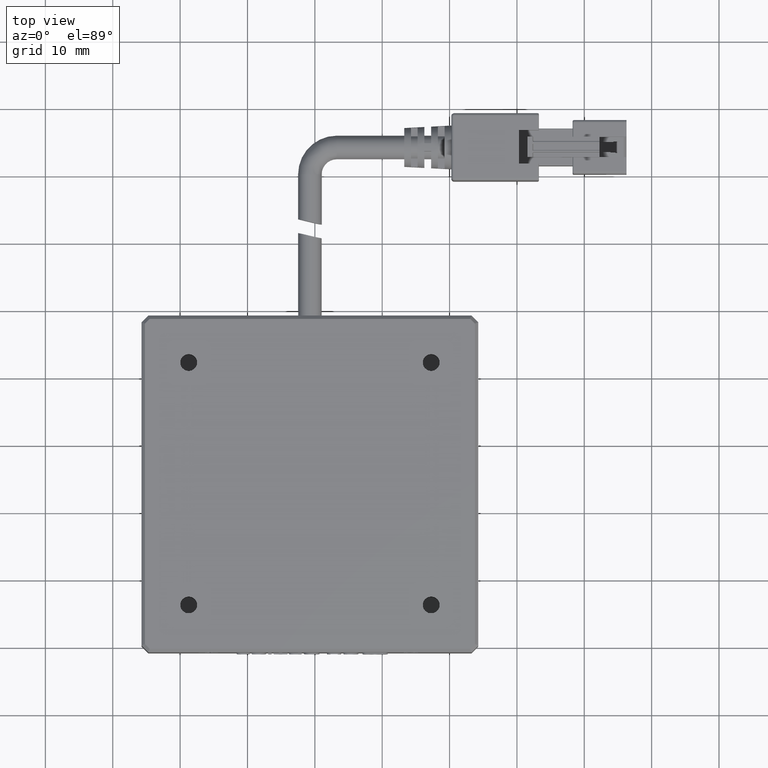
[diagram: clean part render]
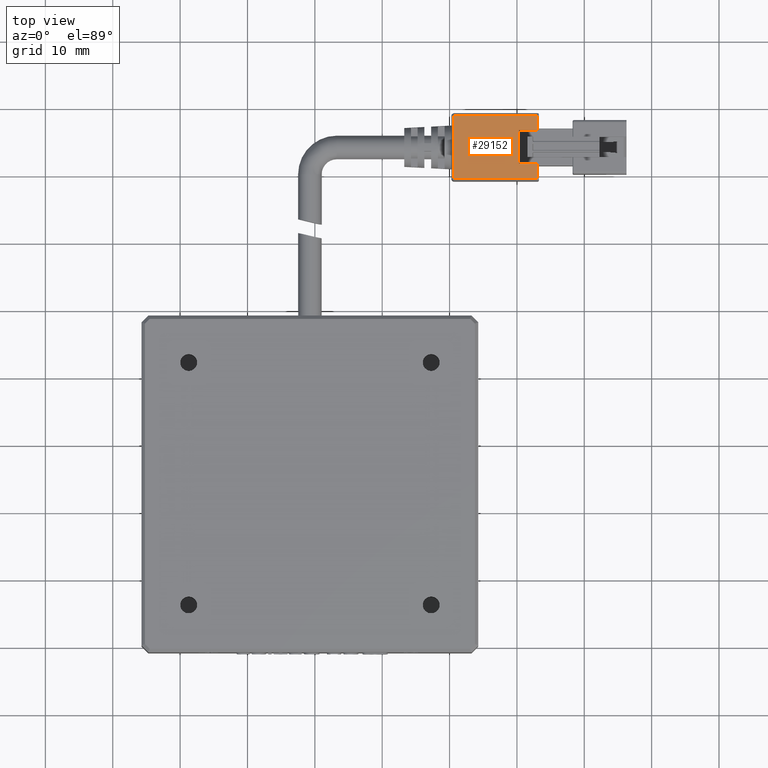
[diagram: same view with one face highlighted and labeled with its STEP entity id]
A machine part, top view. The second image highlights one B-rep face of the part: STEP entity #29152.
In plain terms, the highlighted planar face has unit normal (0, 0, -1).
Its self-contained STEP definition (entity closure, byte-faithful):
#101 = VECTOR ( 'NONE', #16548, 1000.000000000000000 ) ;
#477 = VECTOR ( 'NONE', #15692, 1000.000000000000000 ) ;
#1195 = CARTESIAN_POINT ( 'NONE',  ( 50.26702531645571500, 59.21113924050632700, 3.749999999999990700 ) ) ;
#1280 = AXIS2_PLACEMENT_3D ( 'NONE', #34421, #14964, #37651 ) ;
#1813 = CARTESIAN_POINT ( 'NONE',  ( 53.06702531645572000, 66.71113924050634100, 3.749999999999990700 ) ) ;
#2073 = CARTESIAN_POINT ( 'NONE',  ( 53.06702531645572000, 68.81113924050633600, 3.749999999999990700 ) ) ;
#4482 = ORIENTED_EDGE ( 'NONE', *, *, #38884, .F. ) ;
#4837 = EDGE_CURVE ( 'NONE', #22673, #25397, #39869, .T. ) ;
#5091 = CARTESIAN_POINT ( 'NONE',  ( 53.26702531645571500, 61.71113924050633400, 3.749999999999989800 ) ) ;
#6628 = DIRECTION ( 'NONE',  ( -1.000000000000000000, -0.0000000000000000000, -0.0000000000000000000 ) ) ;
#7683 = VERTEX_POINT ( 'NONE', #22581 ) ;
#8405 = EDGE_CURVE ( 'NONE', #17912, #7683, #41435, .T. ) ;
#9014 = EDGE_CURVE ( 'NONE', #10285, #22673, #27094, .T. ) ;
#10194 = LINE ( 'NONE', #31843, #477 ) ;
#10285 = VERTEX_POINT ( 'NONE', #14532 ) ;
#10438 = VERTEX_POINT ( 'NONE', #42083 ) ;
#10986 = FACE_OUTER_BOUND ( 'NONE', #12084, .T. ) ;
#11043 = DIRECTION ( 'NONE',  ( -0.0000000000000000000, -1.000000000000000000, -2.465190328815661900E-032 ) ) ;
#12022 = VECTOR ( 'NONE', #41017, 1000.000000000000000 ) ;
#12084 = EDGE_LOOP ( 'NONE', ( #38663, #31122, #4482, #37956, #40652, #22955, #22387, #33225 ) ) ;
#13279 = CARTESIAN_POINT ( 'NONE',  ( 53.26702531645571500, 59.61113924050632600, 3.749999999999989800 ) ) ;
#13617 = VECTOR ( 'NONE', #11043, 1000.000000000000000 ) ;
#14532 = CARTESIAN_POINT ( 'NONE',  ( 53.06702531645572000, 59.61113924050633300, 3.749999999999989800 ) ) ;
#14964 = DIRECTION ( 'NONE',  ( 0.0000000000000000000, 2.465190328815661900E-032, -1.000000000000000000 ) ) ;
#15692 = DIRECTION ( 'NONE',  ( -0.0000000000000000000, -1.000000000000000000, -2.465190328815661900E-032 ) ) ;
#16235 = DIRECTION ( 'NONE',  ( -0.0000000000000000000, -1.000000000000000000, -2.465190328815661900E-032 ) ) ;
#16540 = VECTOR ( 'NONE', #6628, 1000.000000000000000 ) ;
#16548 = DIRECTION ( 'NONE',  ( -1.000000000000000000, 0.0000000000000000000, 0.0000000000000000000 ) ) ;
#17292 = LINE ( 'NONE', #38892, #33535 ) ;
#17912 = VERTEX_POINT ( 'NONE', #1813 ) ;
#20628 = LINE ( 'NONE', #5091, #12022 ) ;
#21351 = PLANE ( 'NONE',  #1280 ) ;
#22275 = LINE ( 'NONE', #1195, #13617 ) ;
#22387 = ORIENTED_EDGE ( 'NONE', *, *, #4837, .F. ) ;
#22581 = CARTESIAN_POINT ( 'NONE',  ( 50.26702531645571500, 66.71113924050634100, 3.749999999999990700 ) ) ;
#22673 = VERTEX_POINT ( 'NONE', #28415 ) ;
#22955 = ORIENTED_EDGE ( 'NONE', *, *, #29947, .F. ) ;
#23181 = VERTEX_POINT ( 'NONE', #38561 ) ;
#24515 = EDGE_CURVE ( 'NONE', #23181, #10438, #20628, .T. ) ;
#25397 = VERTEX_POINT ( 'NONE', #26737 ) ;
#26629 = CARTESIAN_POINT ( 'NONE',  ( 40.66702531645572100, 59.21113924050632700, 3.749999999999990700 ) ) ;
#26737 = CARTESIAN_POINT ( 'NONE',  ( 40.66702531645572100, 68.81113924050633600, 3.749999999999990700 ) ) ;
#27094 = LINE ( 'NONE', #13279, #101 ) ;
#28415 = CARTESIAN_POINT ( 'NONE',  ( 40.66702531645572100, 59.61113924050632600, 3.749999999999989800 ) ) ;
#29152 = ADVANCED_FACE ( 'NONE', ( #10986 ), #21351, .F. ) ;
#29348 = CARTESIAN_POINT ( 'NONE',  ( 53.26702531645571500, 66.71113924050634100, 3.749999999999990700 ) ) ;
#29573 = VECTOR ( 'NONE', #33615, 1000.000000000000000 ) ;
#29841 = DIRECTION ( 'NONE',  ( 0.0000000000000000000, 1.000000000000000000, 2.465190328815661900E-032 ) ) ;
#29947 = EDGE_CURVE ( 'NONE', #25397, #35084, #38208, .T. ) ;
#30331 = CARTESIAN_POINT ( 'NONE',  ( 53.26702531645571500, 68.81113924050633600, 3.749999999999990700 ) ) ;
#30770 = EDGE_CURVE ( 'NONE', #10438, #10285, #10194, .T. ) ;
#31122 = ORIENTED_EDGE ( 'NONE', *, *, #24515, .F. ) ;
#31843 = CARTESIAN_POINT ( 'NONE',  ( 53.06702531645572000, 59.21113924050632700, 3.749999999999990700 ) ) ;
#33225 = ORIENTED_EDGE ( 'NONE', *, *, #9014, .F. ) ;
#33535 = VECTOR ( 'NONE', #16235, 1000.000000000000000 ) ;
#33615 = DIRECTION ( 'NONE',  ( 1.000000000000000000, 0.0000000000000000000, 0.0000000000000000000 ) ) ;
#34421 = CARTESIAN_POINT ( 'NONE',  ( 53.26702531645571500, 59.21113924050632700, 3.749999999999990700 ) ) ;
#35084 = VERTEX_POINT ( 'NONE', #2073 ) ;
#37651 = DIRECTION ( 'NONE',  ( 0.0000000000000000000, 1.000000000000000000, 2.465190328815661900E-032 ) ) ;
#37868 = VECTOR ( 'NONE', #29841, 1000.000000000000000 ) ;
#37956 = ORIENTED_EDGE ( 'NONE', *, *, #8405, .F. ) ;
#38045 = EDGE_CURVE ( 'NONE', #35084, #17912, #17292, .T. ) ;
#38208 = LINE ( 'NONE', #30331, #29573 ) ;
#38561 = CARTESIAN_POINT ( 'NONE',  ( 50.26702531645571500, 61.71113924050633400, 3.749999999999989800 ) ) ;
#38663 = ORIENTED_EDGE ( 'NONE', *, *, #30770, .F. ) ;
#38884 = EDGE_CURVE ( 'NONE', #7683, #23181, #22275, .T. ) ;
#38892 = CARTESIAN_POINT ( 'NONE',  ( 53.06702531645572000, 59.21113924050632700, 3.749999999999990700 ) ) ;
#39869 = LINE ( 'NONE', #26629, #37868 ) ;
#40652 = ORIENTED_EDGE ( 'NONE', *, *, #38045, .F. ) ;
#41017 = DIRECTION ( 'NONE',  ( 1.000000000000000000, 0.0000000000000000000, 0.0000000000000000000 ) ) ;
#41435 = LINE ( 'NONE', #29348, #16540 ) ;
#42083 = CARTESIAN_POINT ( 'NONE',  ( 53.06702531645572000, 61.71113924050633400, 3.749999999999989800 ) ) ;